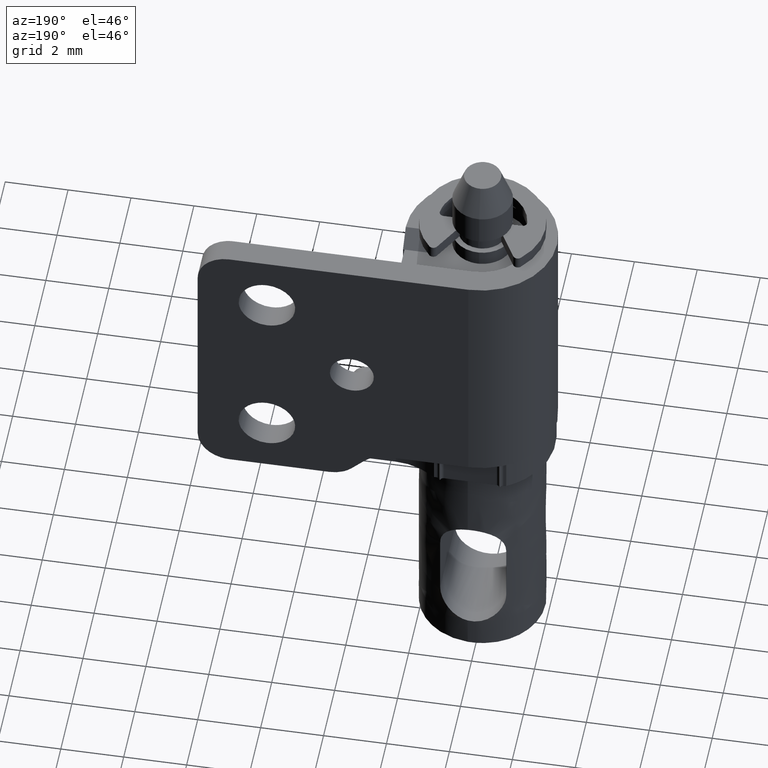
[diagram: clean part render]
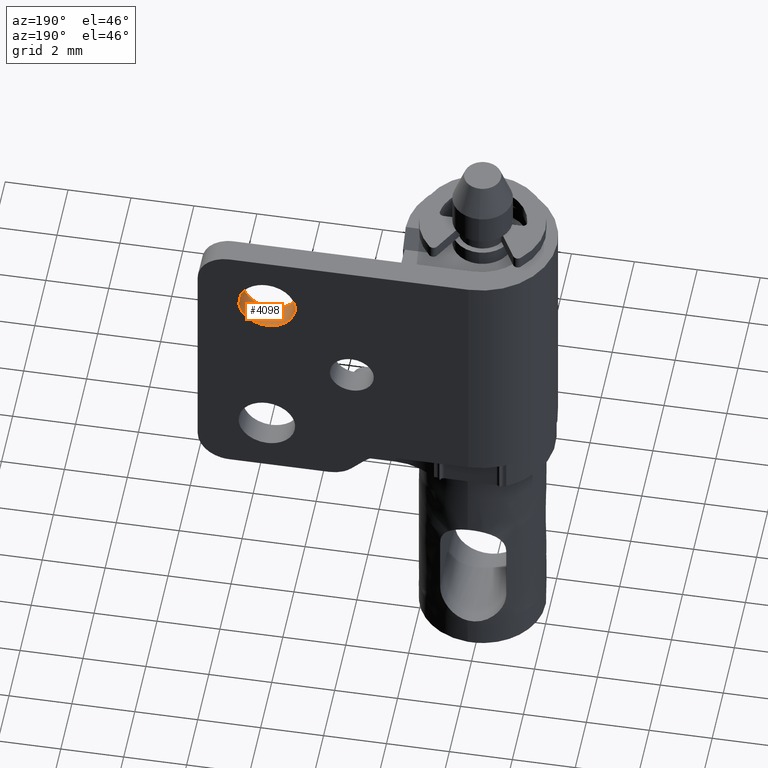
[diagram: same view with one face highlighted and labeled with its STEP entity id]
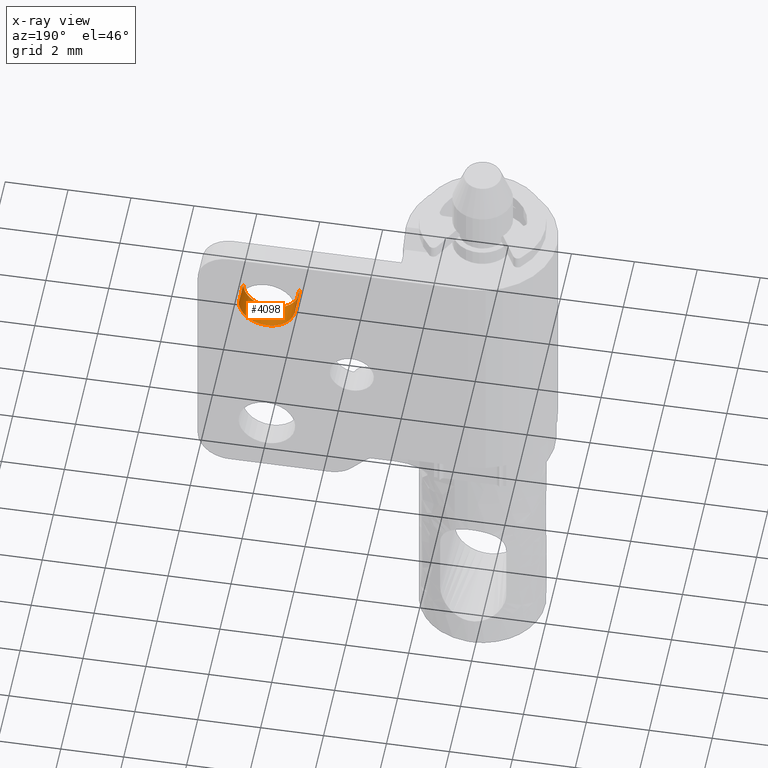
[diagram: x-ray of the same camera — body ghosted, the highlighted face saturated]
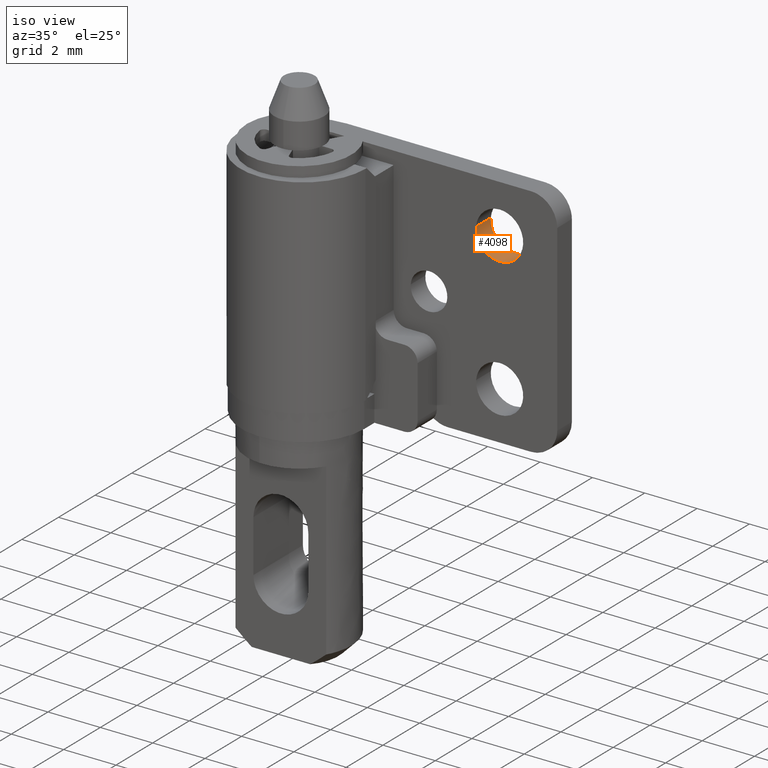
[diagram: same view with one face highlighted and labeled with its STEP entity id]
A machine part, auxiliary view. The second image highlights one B-rep face of the part: STEP entity #4098.
The next image is the same camera in x-ray: the body ghosted, the highlighted face saturated — about 0% of this face is hidden behind the body in this view.
A second angle (iso view) of the same face is appended — the face is thin or edge-on in the first view.
In plain terms, the highlighted face is a freeform B-spline surface patch.
Its self-contained STEP definition (entity closure, byte-faithful):
#3937=CARTESIAN_POINT('',(5.502774399642845,1.800000000000025,15.220613186188350));
#3938=VERTEX_POINT('',#3937);
#3952=CARTESIAN_POINT('',(5.502774399642845,2.600000000000045,15.220613186188350));
#3953=VERTEX_POINT('',#3952);
#3954=CARTESIAN_POINT('',(5.502774399642845,1.800000000000025,15.220613186188350));
#3955=CARTESIAN_POINT('',(5.502774399642845,2.600000000000045,15.220613186188350));
#3956=QUASI_UNIFORM_CURVE('',1,(#3954,#3955),.UNSPECIFIED.,.F.,.U.);
#3957=EDGE_CURVE('',#3938,#3953,#3956,.T.);
#3974=CARTESIAN_POINT('',(7.297225600357156,2.600000000000045,15.079386813810650));
#3975=VERTEX_POINT('',#3974);
#3991=CARTESIAN_POINT('',(7.297225600357156,1.800000000000025,15.079386813810650));
#3992=VERTEX_POINT('',#3991);
#3993=CARTESIAN_POINT('',(7.297225600357156,1.800000000000025,15.079386813810650));
#3994=CARTESIAN_POINT('',(7.297225600357156,2.600000000000045,15.079386813810650));
#3995=QUASI_UNIFORM_CURVE('',1,(#3993,#3994),.UNSPECIFIED.,.F.,.U.);
#3996=EDGE_CURVE('',#3992,#3975,#3995,.T.);
#4016=CARTESIAN_POINT('',(7.297225600359815,1.780000000000024,15.079386813844440));
#4017=CARTESIAN_POINT('',(7.226612414204754,1.780000000000025,14.182161213484617));
#4018=CARTESIAN_POINT('',(6.329386813844939,1.780000000000024,14.252774399639680));
#4019=CARTESIAN_POINT('',(5.432161213485125,1.780000000000025,14.323387585794750));
#4020=CARTESIAN_POINT('',(5.502774399640185,1.780000000000024,15.220613186154560));
#4021=CARTESIAN_POINT('',(7.297225600359815,2.620500000000046,15.079386813844440));
#4022=CARTESIAN_POINT('',(7.226612414204754,2.620500000000047,14.182161213484617));
#4023=CARTESIAN_POINT('',(6.329386813844939,2.620500000000046,14.252774399639680));
#4024=CARTESIAN_POINT('',(5.432161213485125,2.620500000000047,14.323387585794750));
#4025=CARTESIAN_POINT('',(5.502774399640185,2.620500000000046,15.220613186154560));
#4033=(BOUNDED_SURFACE()B_SPLINE_SURFACE(2,1,((#4016,#4021),(#4017,#4022),(#4018,#4023),(#4019,#4024),(#4020,#4025)),.UNSPECIFIED.,.F.,.F.,.U.)B_SPLINE_SURFACE_WITH_KNOTS((3,2,3),(2,2),(0.0,1.570796326794897,3.141592653589793),(0.0,1.0),.UNSPECIFIED.)GEOMETRIC_REPRESENTATION_ITEM()RATIONAL_B_SPLINE_SURFACE(((1.0,1.0),(0.707106781186548,0.707106781186548),(1.0,1.0),(0.707106781186548,0.707106781186548),(1.0,1.0)))REPRESENTATION_ITEM('')SURFACE());
#4034=CARTESIAN_POINT('',(6.400000000000000,1.800000000000025,14.249999999999501));
#4035=VERTEX_POINT('',#4034);
#4036=CARTESIAN_POINT('',(5.502774399642844,1.800000000000025,15.220613186188347));
#4037=CARTESIAN_POINT('',(5.500000000000001,1.800000000000025,15.185361096323367));
#4038=CARTESIAN_POINT('',(5.500000000000001,1.800000000000025,15.149999999999499));
#4039=CARTESIAN_POINT('',(5.500000000000002,1.800000000000025,14.249999999999503));
#4040=CARTESIAN_POINT('',(6.400000000000000,1.800000000000025,14.249999999999501));
#4048=(BOUNDED_CURVE()B_SPLINE_CURVE(2,(#4036,#4037,#4038,#4039,#4040),.UNSPECIFIED.,.F.,.U.)B_SPLINE_CURVE_WITH_KNOTS((3,2,3),(0.236331300626312,0.250000000000000,0.500000000000000),.UNSPECIFIED.)CURVE()GEOMETRIC_REPRESENTATION_ITEM()RATIONAL_B_SPLINE_CURVE((0.969723356158345,0.983986122573789,1.0,0.707106781186547,1.0))REPRESENTATION_ITEM(''));
#4049=EDGE_CURVE('',#3938,#4035,#4048,.T.);
#4050=ORIENTED_EDGE('',*,*,#4049,.T.);
#4051=CARTESIAN_POINT('',(6.400000000000000,1.800000000000025,14.249999999999501));
#4052=CARTESIAN_POINT('',(7.231951442460961,1.800000000000025,14.249999999999499));
#4053=CARTESIAN_POINT('',(7.297225600357154,1.800000000000025,15.079386813810649));
#4061=(BOUNDED_CURVE()B_SPLINE_CURVE(2,(#4051,#4052,#4053),.UNSPECIFIED.,.F.,.U.)B_SPLINE_CURVE_WITH_KNOTS((3,3),(0.500000000000000,0.736331300626312),.UNSPECIFIED.)CURVE()GEOMETRIC_REPRESENTATION_ITEM()RATIONAL_B_SPLINE_CURVE((1.0,0.723120658612759,0.969723356158344))REPRESENTATION_ITEM(''));
#4062=EDGE_CURVE('',#4035,#3992,#4061,.T.);
#4063=ORIENTED_EDGE('',*,*,#4062,.T.);
#4064=ORIENTED_EDGE('',*,*,#3996,.T.);
#4065=CARTESIAN_POINT('',(6.400000000000000,2.600000000000045,14.249999999999501));
#4066=VERTEX_POINT('',#4065);
#4067=CARTESIAN_POINT('',(6.400000000000000,2.600000000000045,14.249999999999501));
#4068=CARTESIAN_POINT('',(7.231951442460961,2.600000000000045,14.249999999999499));
#4069=CARTESIAN_POINT('',(7.297225600357154,2.600000000000045,15.079386813810649));
#4077=(BOUNDED_CURVE()B_SPLINE_CURVE(2,(#4067,#4068,#4069),.UNSPECIFIED.,.F.,.U.)B_SPLINE_CURVE_WITH_KNOTS((3,3),(0.500000000000000,0.736331300626312),.UNSPECIFIED.)CURVE()GEOMETRIC_REPRESENTATION_ITEM()RATIONAL_B_SPLINE_CURVE((1.0,0.723120658612759,0.969723356158344))REPRESENTATION_ITEM(''));
#4078=EDGE_CURVE('',#4066,#3975,#4077,.T.);
#4079=ORIENTED_EDGE('',*,*,#4078,.F.);
#4080=CARTESIAN_POINT('',(5.502774399642846,2.600000000000045,15.220613186188347));
#4081=CARTESIAN_POINT('',(5.500000000000001,2.600000000000045,15.185361096323369));
#4082=CARTESIAN_POINT('',(5.500000000000001,2.600000000000045,15.149999999999499));
#4083=CARTESIAN_POINT('',(5.500000000000002,2.600000000000045,14.249999999999503));
#4084=CARTESIAN_POINT('',(6.400000000000000,2.600000000000045,14.249999999999501));
#4092=(BOUNDED_CURVE()B_SPLINE_CURVE(2,(#4080,#4081,#4082,#4083,#4084),.UNSPECIFIED.,.F.,.U.)B_SPLINE_CURVE_WITH_KNOTS((3,2,3),(0.236331300626312,0.250000000000000,0.500000000000000),.UNSPECIFIED.)CURVE()GEOMETRIC_REPRESENTATION_ITEM()RATIONAL_B_SPLINE_CURVE((0.969723356158344,0.983986122573788,1.0,0.707106781186547,1.0))REPRESENTATION_ITEM(''));
#4093=EDGE_CURVE('',#3953,#4066,#4092,.T.);
#4094=ORIENTED_EDGE('',*,*,#4093,.F.);
#4095=ORIENTED_EDGE('',*,*,#3957,.F.);
#4096=EDGE_LOOP('',(#4050,#4063,#4064,#4079,#4094,#4095));
#4097=FACE_OUTER_BOUND('',#4096,.T.);
#4098=ADVANCED_FACE('',(#4097),#4033,.F.);